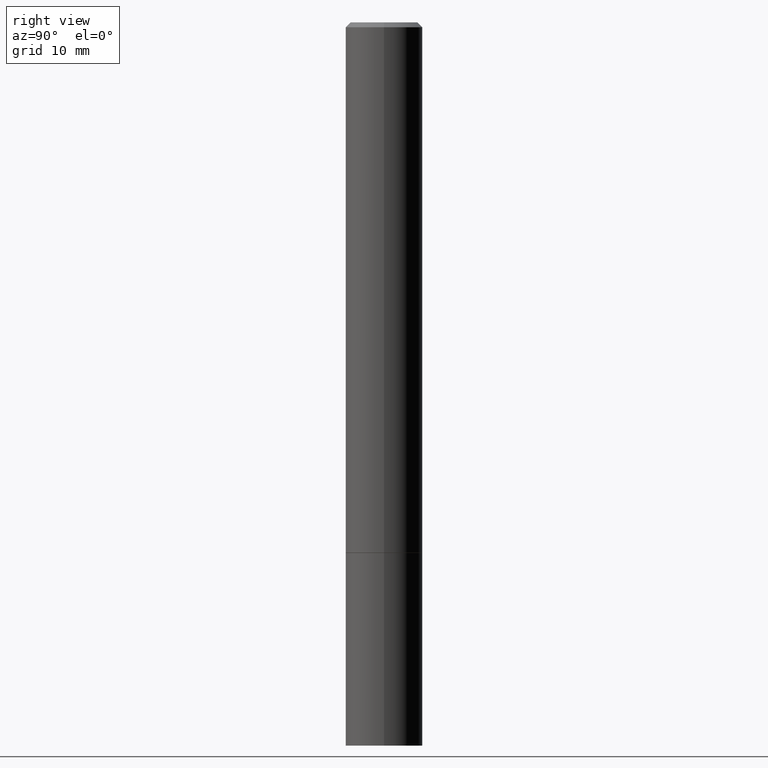
[diagram: clean part render]
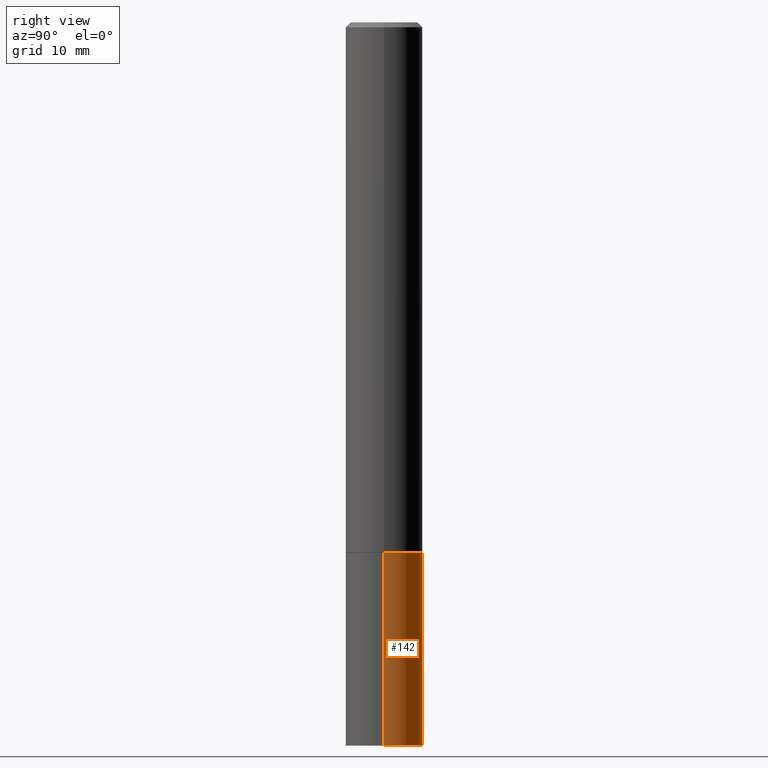
[diagram: same view with one face highlighted and labeled with its STEP entity id]
A machine part, right view. The second image highlights one B-rep face of the part: STEP entity #142.
In plain terms, the highlighted cylindrical surface (partial cylindrical patch) has radius 4.0005 mm, axis along (-0, 0, 1).
Its self-contained STEP definition (entity closure, byte-faithful):
#7 = AXIS2_PLACEMENT_3D ( 'NONE', #86, #114, #173 ) ;
#13 = VERTEX_POINT ( 'NONE', #14 ) ;
#14 = CARTESIAN_POINT ( 'NONE',  ( 0.1575000000000000011, -1.140946271907162522E-14, -2.952799999999999869 ) ) ;
#35 = CARTESIAN_POINT ( 'NONE',  ( -0.1575000000000000011, -7.815945085411336161E-15, -2.952799999999999869 ) ) ;
#62 = EDGE_CURVE ( 'NONE', #13, #263, #135, .T. ) ;
#75 = CYLINDRICAL_SURFACE ( 'NONE', #260, 0.1575000000000000011 ) ;
#86 = CARTESIAN_POINT ( 'NONE',  ( 5.295418152913294345E-29, -7.560453691130947423E-15, -2.165399999999999991 ) ) ;
#100 = ORIENTED_EDGE ( 'NONE', *, *, #62, .F. ) ;
#102 = VECTOR ( 'NONE', #275, 39.37007874015748143 ) ;
#114 = DIRECTION ( 'NONE',  ( -2.445468806185136597E-29, 3.491481338843145583E-15, 1.000000000000000000 ) ) ;
#135 = LINE ( 'NONE', #299, #102 ) ;
#136 = DIRECTION ( 'NONE',  ( -2.445468806185136877E-29, 3.491481338843145188E-15, 1.000000000000000000 ) ) ;
#141 = CARTESIAN_POINT ( 'NONE',  ( 0.1575000000000000011, -8.660270312866534114E-15, -2.165399999999999991 ) ) ;
#142 = ADVANCED_FACE ( 'NONE', ( #210 ), #75, .T. ) ;
#152 = EDGE_CURVE ( 'NONE', #290, #286, #248, .T. ) ;
#158 = AXIS2_PLACEMENT_3D ( 'NONE', #279, #310, #221 ) ;
#169 = VECTOR ( 'NONE', #136, 39.37007874015748143 ) ;
#173 = DIRECTION ( 'NONE',  ( 1.000000000000000000, -6.982962677686268288E-15, 0.000000000000000000 ) ) ;
#178 = ORIENTED_EDGE ( 'NONE', *, *, #334, .F. ) ;
#188 = DIRECTION ( 'NONE',  ( -2.445468806185136597E-29, 3.491481338843145583E-15, 1.000000000000000000 ) ) ;
#191 = CARTESIAN_POINT ( 'NONE',  ( 0.000000000000000000, 0.000000000000000000, 0.000000000000000000 ) ) ;
#194 = CIRCLE ( 'NONE', #158, 0.1575000000000000011 ) ;
#210 = FACE_OUTER_BOUND ( 'NONE', #235, .T. ) ;
#221 = DIRECTION ( 'NONE',  ( 1.000000000000000000, -6.982962677686261977E-15, 0.000000000000000000 ) ) ;
#232 = ORIENTED_EDGE ( 'NONE', *, *, #152, .T. ) ;
#235 = EDGE_LOOP ( 'NONE', ( #324, #232, #178, #100 ) ) ;
#248 = LINE ( 'NONE', #333, #169 ) ;
#260 = AXIS2_PLACEMENT_3D ( 'NONE', #191, #188, #296 ) ;
#263 = VERTEX_POINT ( 'NONE', #141 ) ;
#269 = EDGE_CURVE ( 'NONE', #13, #290, #194, .T. ) ;
#275 = DIRECTION ( 'NONE',  ( -2.445468806185136877E-29, 3.491481338843145188E-15, 1.000000000000000000 ) ) ;
#279 = CARTESIAN_POINT ( 'NONE',  ( 7.220980290903470182E-29, -1.030964609733603853E-14, -2.952799999999999869 ) ) ;
#286 = VERTEX_POINT ( 'NONE', #338 ) ;
#290 = VERTEX_POINT ( 'NONE', #35 ) ;
#293 = CIRCLE ( 'NONE', #7, 0.1575000000000000011 ) ;
#296 = DIRECTION ( 'NONE',  ( 1.000000000000000000, -6.982962677686265922E-15, 4.876176775795935232E-29 ) ) ;
#299 = CARTESIAN_POINT ( 'NONE',  ( 0.1575000000000000011, -1.099816621735586889E-15, 7.679978421878598033E-30 ) ) ;
#310 = DIRECTION ( 'NONE',  ( -2.445468806185136597E-29, 3.491481338843145583E-15, 1.000000000000000000 ) ) ;
#324 = ORIENTED_EDGE ( 'NONE', *, *, #269, .T. ) ;
#333 = CARTESIAN_POINT ( 'NONE',  ( -0.1575000000000000011, 1.119104808822157801E-15, -7.747322767151475583E-30 ) ) ;
#334 = EDGE_CURVE ( 'NONE', #263, #286, #293, .T. ) ;
#338 = CARTESIAN_POINT ( 'NONE',  ( -0.1575000000000000011, -7.815945085411336161E-15, -2.165399999999999991 ) ) ;